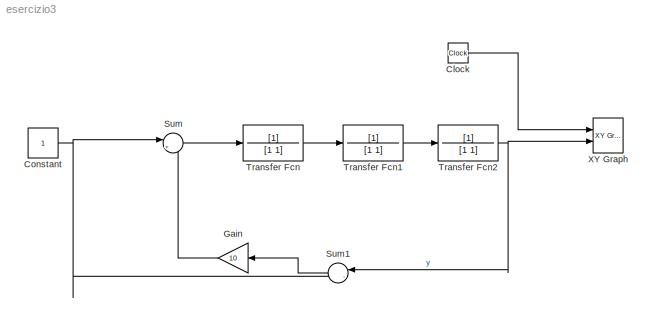
MODEL esercizio3
KIND model
BLOCK [Clock] Clock
  SID = 1
BLOCK [Constant] Constant
  SID = 2
BLOCK [Gain] Gain
  Gain = 10
  OutDataTypeStr = Inherit: Inherit via internal rule
  ParamDataTypeStr = Inherit: Inherit via internal rule
  SID = 3
  SaturateOnIntegerOverflow = off
BLOCK [Sum] Sum
  IconShape = round
  InputSameDT = off
  Inputs = |++
  OutDataTypeStr = Inherit: Inherit via internal rule
  Ports = [2, 1]
  SID = 4
  SaturateOnIntegerOverflow = off
BLOCK [Sum] Sum1
  IconShape = round
  InputSameDT = off
  Inputs = |-+
  OutDataTypeStr = Inherit: Inherit via internal rule
  Ports = [2, 1]
  SID = 5
  SaturateOnIntegerOverflow = off
BLOCK [TransferFcn] Transfer Fcn
  Denominator = [1 1]
  SID = 6
BLOCK [TransferFcn] Transfer Fcn1
  Denominator = [1 1]
  SID = 7
BLOCK [TransferFcn] Transfer Fcn2
  Denominator = [1 1]
  SID = 8
BLOCK [Reference] XY Graph  REF=simulink/Sinks/XY Graph
  Ports = [2]
  SID = 9
  SourceBlock = simulink/Sinks/XY Graph
  SourceProductBaseCode = SL
  SourceProductName = Simulink
  SourceType = XY scope.
  st = 0.01
  xmax = 50
  xmin = 0
  ymax = 12
  ymin = -10
LINE Clock:1 -> XY Graph:1
NET Constant:1 -> Sum1:2, Sum:1
LINE Gain:1 -> Sum:2
LINE Sum1:1 -> Gain:1
LINE Sum:1 -> Transfer Fcn:1
LINE Transfer Fcn1:1 -> Transfer Fcn2:1
NET Transfer Fcn2:1 -> Sum1:1, XY Graph:2
LINE Transfer Fcn:1 -> Transfer Fcn1:1
note: NET lines group one-source signal fan-out (src -> all destinations, sorted); 1:1 wires keep LINE
